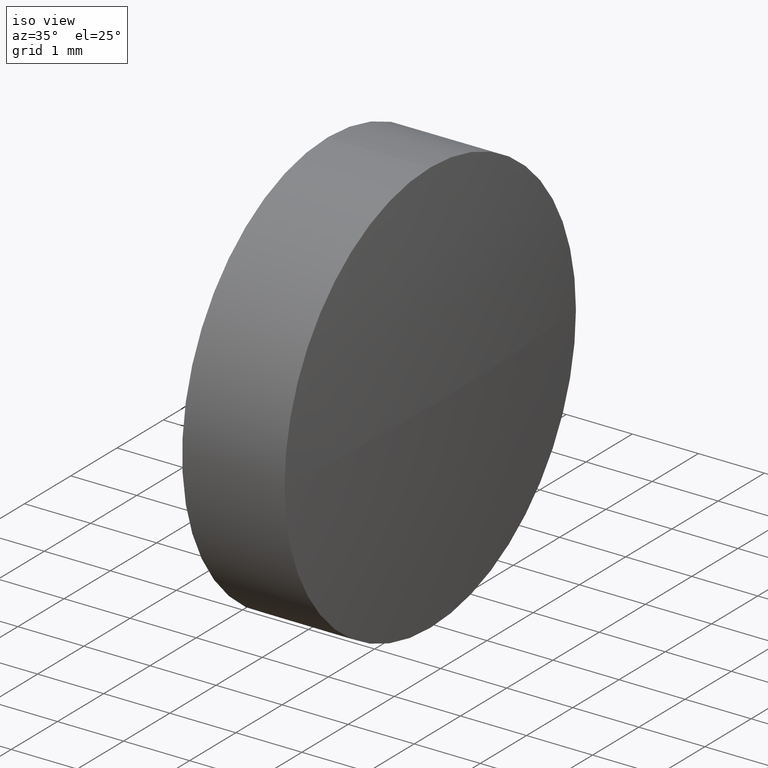
[diagram: clean part render]
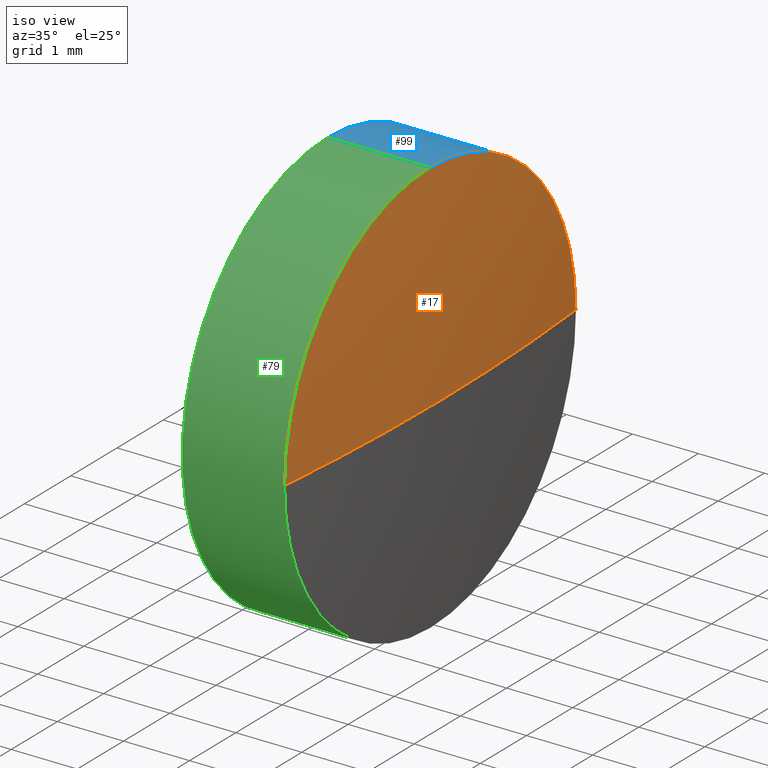
[diagram: same view with three faces highlighted in distinct colors, each labeled with its STEP entity id]
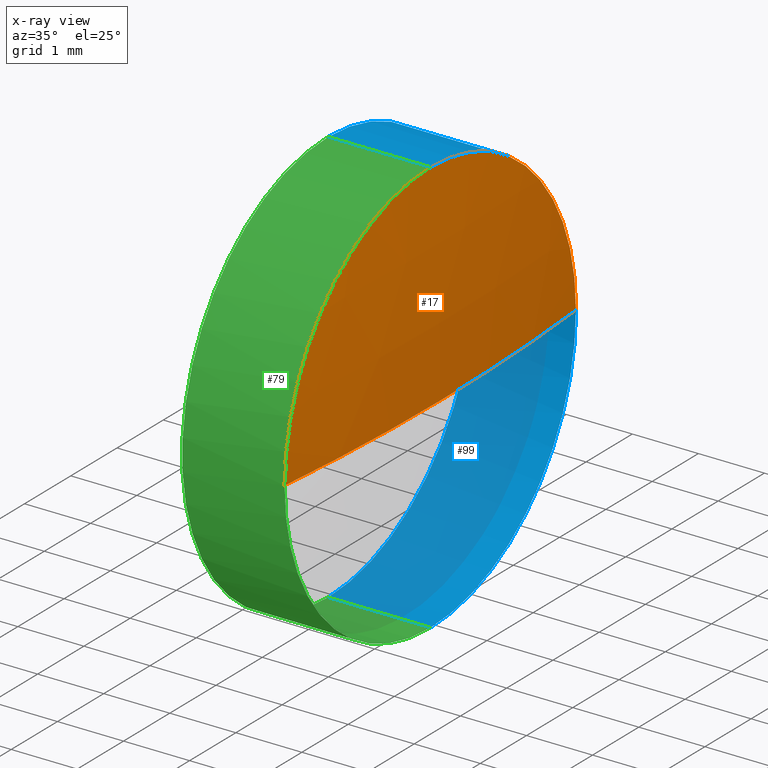
[diagram: x-ray of the same camera — body ghosted, the three highlighted faces saturated]
A machine part, iso view with three faces highlighted in distinct colors.
The next image is the same camera in x-ray (body ghosted, the three faces saturated) — at least one of them is partly hidden behind the body in this view.
Their STEP definitions:

[orange] entity #17 — the highlighted spherical surface has radius 33.15 mm.
#4 = VERTEX_POINT ( 'NONE', #42 ) ;
#9 = DIRECTION ( 'NONE',  ( -1.000000000000000000, 0.0000000000000000000, 0.0000000000000000000 ) ) ;
#13 = EDGE_LOOP ( 'NONE', ( #150, #172, #61, #182 ) ) ;
#17 = ADVANCED_FACE ( 'NONE', ( #152 ), #69, .T. ) ;
#18 = CARTESIAN_POINT ( 'NONE',  ( 487.3789024889172800, 224.6626212863787900, 0.0000000000000000000 ) ) ;
#22 = CIRCLE ( 'NONE', #84, 3.150000000000013700 ) ;
#23 = DIRECTION ( 'NONE',  ( 0.0000000000000000000, 0.0000000000000000000, -1.000000000000000000 ) ) ;
#27 = DIRECTION ( 'NONE',  ( 0.0000000000000000000, -1.000000000000000000, 0.0000000000000000000 ) ) ;
#33 = DIRECTION ( 'NONE',  ( 0.0000000000000000000, -1.000000000000000000, -1.224646799147353200E-016 ) ) ;
#34 = DIRECTION ( 'NONE',  ( 0.0000000000000000000, -1.224646799147353200E-016, 1.000000000000000000 ) ) ;
#37 = EDGE_CURVE ( 'NONE', #153, #4, #117, .T. ) ;
#41 = AXIS2_PLACEMENT_3D ( 'NONE', #95, #34, #33 ) ;
#42 = CARTESIAN_POINT ( 'NONE',  ( 487.3789024889172800, 227.8126212863787400, 3.857637417314024600E-016 ) ) ;
#44 = DIRECTION ( 'NONE',  ( 0.0000000000000000000, 0.0000000000000000000, 1.000000000000000000 ) ) ;
#61 = ORIENTED_EDGE ( 'NONE', *, *, #37, .F. ) ;
#63 = AXIS2_PLACEMENT_3D ( 'NONE', #82, #145, #171 ) ;
#69 = SPHERICAL_SURFACE ( 'NONE', #168, 33.15000000000001300 ) ;
#82 = CARTESIAN_POINT ( 'NONE',  ( 487.3789024889172800, 224.6626212863787900, 0.0000000000000000000 ) ) ;
#83 = DIRECTION ( 'NONE',  ( 0.0000000000000000000, 0.0000000000000000000, 1.000000000000000000 ) ) ;
#84 = AXIS2_PLACEMENT_3D ( 'NONE', #18, #161, #44 ) ;
#87 = CARTESIAN_POINT ( 'NONE',  ( 487.3789024889172800, 221.5126212863788700, 0.0000000000000000000 ) ) ;
#95 = CARTESIAN_POINT ( 'NONE',  ( 454.3789024889172800, 224.6626212863788800, 0.0000000000000000000 ) ) ;
#97 = CARTESIAN_POINT ( 'NONE',  ( 487.3789024889172800, 224.6626212863787900, 3.150000000000013700 ) ) ;
#98 = CIRCLE ( 'NONE', #41, 33.15000000000001300 ) ;
#103 = CARTESIAN_POINT ( 'NONE',  ( 454.3789024889172800, 224.6626212863788800, 0.0000000000000000000 ) ) ;
#108 = VERTEX_POINT ( 'NONE', #185 ) ;
#117 = CIRCLE ( 'NONE', #63, 3.150000000000013700 ) ;
#122 = EDGE_CURVE ( 'NONE', #136, #153, #22, .T. ) ;
#125 = CIRCLE ( 'NONE', #134, 33.15000000000001300 ) ;
#126 = CARTESIAN_POINT ( 'NONE',  ( 454.3789024889172800, 224.6626212863788800, 0.0000000000000000000 ) ) ;
#134 = AXIS2_PLACEMENT_3D ( 'NONE', #126, #23, #9 ) ;
#136 = VERTEX_POINT ( 'NONE', #87 ) ;
#144 = EDGE_CURVE ( 'NONE', #108, #4, #98, .T. ) ;
#145 = DIRECTION ( 'NONE',  ( -1.000000000000000000, -0.0000000000000000000, -0.0000000000000000000 ) ) ;
#150 = ORIENTED_EDGE ( 'NONE', *, *, #180, .F. ) ;
#152 = FACE_OUTER_BOUND ( 'NONE', #13, .T. ) ;
#153 = VERTEX_POINT ( 'NONE', #97 ) ;
#161 = DIRECTION ( 'NONE',  ( -1.000000000000000000, -0.0000000000000000000, -0.0000000000000000000 ) ) ;
#168 = AXIS2_PLACEMENT_3D ( 'NONE', #103, #83, #27 ) ;
#171 = DIRECTION ( 'NONE',  ( 0.0000000000000000000, 0.0000000000000000000, 1.000000000000000000 ) ) ;
#172 = ORIENTED_EDGE ( 'NONE', *, *, #144, .T. ) ;
#180 = EDGE_CURVE ( 'NONE', #108, #136, #125, .T. ) ;
#182 = ORIENTED_EDGE ( 'NONE', *, *, #122, .F. ) ;
#185 = CARTESIAN_POINT ( 'NONE',  ( 487.5289024889172500, 224.6626212863788800, 0.0000000000000000000 ) ) ;

[blue] entity #99 — the highlighted cylindrical surface (partial cylindrical patch) has radius 3.15 mm, axis along (-1, -0, -0).
#1 = CARTESIAN_POINT ( 'NONE',  ( 485.8289024889173200, 224.6626212863787900, -3.150000000000013700 ) ) ;
#3 = AXIS2_PLACEMENT_3D ( 'NONE', #165, #56, #93 ) ;
#4 = VERTEX_POINT ( 'NONE', #42 ) ;
#11 = CIRCLE ( 'NONE', #3, 3.150000000000013700 ) ;
#14 = DIRECTION ( 'NONE',  ( -1.000000000000000000, -0.0000000000000000000, -0.0000000000000000000 ) ) ;
#20 = AXIS2_PLACEMENT_3D ( 'NONE', #158, #14, #88 ) ;
#30 = LINE ( 'NONE', #147, #46 ) ;
#32 = VERTEX_POINT ( 'NONE', #65 ) ;
#37 = EDGE_CURVE ( 'NONE', #153, #4, #117, .T. ) ;
#39 = DIRECTION ( 'NONE',  ( -1.000000000000000000, -0.0000000000000000000, -0.0000000000000000000 ) ) ;
#40 = ORIENTED_EDGE ( 'NONE', *, *, #47, .T. ) ;
#42 = CARTESIAN_POINT ( 'NONE',  ( 487.3789024889172800, 227.8126212863787400, 3.857637417314024600E-016 ) ) ;
#43 = ORIENTED_EDGE ( 'NONE', *, *, #92, .F. ) ;
#46 = VECTOR ( 'NONE', #133, 1000.000000000000000 ) ;
#47 = EDGE_CURVE ( 'NONE', #91, #123, #30, .T. ) ;
#55 = CIRCLE ( 'NONE', #174, 3.150000000000013700 ) ;
#56 = DIRECTION ( 'NONE',  ( -1.000000000000000000, -0.0000000000000000000, -0.0000000000000000000 ) ) ;
#58 = CYLINDRICAL_SURFACE ( 'NONE', #20, 3.150000000000013700 ) ;
#63 = AXIS2_PLACEMENT_3D ( 'NONE', #82, #145, #171 ) ;
#65 = CARTESIAN_POINT ( 'NONE',  ( 485.8289024889173200, 224.6626212863787900, 3.150000000000013700 ) ) ;
#67 = DIRECTION ( 'NONE',  ( -1.000000000000000000, -0.0000000000000000000, -0.0000000000000000000 ) ) ;
#70 = CARTESIAN_POINT ( 'NONE',  ( 484.9672743193327700, 224.6626212863787900, 3.150000000000013700 ) ) ;
#71 = VECTOR ( 'NONE', #67, 1000.000000000000000 ) ;
#82 = CARTESIAN_POINT ( 'NONE',  ( 487.3789024889172800, 224.6626212863787900, 0.0000000000000000000 ) ) ;
#88 = DIRECTION ( 'NONE',  ( 0.0000000000000000000, 0.0000000000000000000, 1.000000000000000000 ) ) ;
#91 = VERTEX_POINT ( 'NONE', #148 ) ;
#92 = EDGE_CURVE ( 'NONE', #153, #32, #120, .T. ) ;
#93 = DIRECTION ( 'NONE',  ( 0.0000000000000000000, 0.0000000000000000000, 1.000000000000000000 ) ) ;
#97 = CARTESIAN_POINT ( 'NONE',  ( 487.3789024889172800, 224.6626212863787900, 3.150000000000013700 ) ) ;
#99 = ADVANCED_FACE ( 'NONE', ( #156 ), #58, .T. ) ;
#106 = EDGE_CURVE ( 'NONE', #32, #123, #55, .T. ) ;
#114 = EDGE_LOOP ( 'NONE', ( #167, #40, #186, #43, #179 ) ) ;
#117 = CIRCLE ( 'NONE', #63, 3.150000000000013700 ) ;
#119 = CARTESIAN_POINT ( 'NONE',  ( 485.8289024889173200, 224.6626212863787900, 0.0000000000000000000 ) ) ;
#120 = LINE ( 'NONE', #70, #71 ) ;
#123 = VERTEX_POINT ( 'NONE', #1 ) ;
#133 = DIRECTION ( 'NONE',  ( -1.000000000000000000, -0.0000000000000000000, -0.0000000000000000000 ) ) ;
#138 = EDGE_CURVE ( 'NONE', #4, #91, #11, .T. ) ;
#145 = DIRECTION ( 'NONE',  ( -1.000000000000000000, -0.0000000000000000000, -0.0000000000000000000 ) ) ;
#147 = CARTESIAN_POINT ( 'NONE',  ( 484.9672743193327700, 224.6626212863787900, -3.150000000000013700 ) ) ;
#148 = CARTESIAN_POINT ( 'NONE',  ( 487.3789024889172800, 224.6626212863787900, -3.150000000000013700 ) ) ;
#149 = DIRECTION ( 'NONE',  ( 0.0000000000000000000, 0.0000000000000000000, 1.000000000000000000 ) ) ;
#153 = VERTEX_POINT ( 'NONE', #97 ) ;
#156 = FACE_OUTER_BOUND ( 'NONE', #114, .T. ) ;
#158 = CARTESIAN_POINT ( 'NONE',  ( 484.9672743193327700, 224.6626212863787900, 0.0000000000000000000 ) ) ;
#165 = CARTESIAN_POINT ( 'NONE',  ( 487.3789024889172800, 224.6626212863787900, 0.0000000000000000000 ) ) ;
#167 = ORIENTED_EDGE ( 'NONE', *, *, #138, .T. ) ;
#171 = DIRECTION ( 'NONE',  ( 0.0000000000000000000, 0.0000000000000000000, 1.000000000000000000 ) ) ;
#174 = AXIS2_PLACEMENT_3D ( 'NONE', #119, #39, #149 ) ;
#179 = ORIENTED_EDGE ( 'NONE', *, *, #37, .T. ) ;
#186 = ORIENTED_EDGE ( 'NONE', *, *, #106, .F. ) ;

[green] entity #79 — the highlighted cylindrical surface (partial cylindrical patch) has radius 3.15 mm, axis along (-1, -0, -0).
#1 = CARTESIAN_POINT ( 'NONE',  ( 485.8289024889173200, 224.6626212863787900, -3.150000000000013700 ) ) ;
#2 = CIRCLE ( 'NONE', #68, 3.150000000000013700 ) ;
#5 = CIRCLE ( 'NONE', #7, 3.150000000000013700 ) ;
#6 = ORIENTED_EDGE ( 'NONE', *, *, #47, .F. ) ;
#7 = AXIS2_PLACEMENT_3D ( 'NONE', #59, #142, #110 ) ;
#18 = CARTESIAN_POINT ( 'NONE',  ( 487.3789024889172800, 224.6626212863787900, 0.0000000000000000000 ) ) ;
#21 = ORIENTED_EDGE ( 'NONE', *, *, #92, .T. ) ;
#22 = CIRCLE ( 'NONE', #84, 3.150000000000013700 ) ;
#25 = EDGE_LOOP ( 'NONE', ( #6, #121, #164, #21, #111 ) ) ;
#30 = LINE ( 'NONE', #147, #46 ) ;
#32 = VERTEX_POINT ( 'NONE', #65 ) ;
#44 = DIRECTION ( 'NONE',  ( 0.0000000000000000000, 0.0000000000000000000, 1.000000000000000000 ) ) ;
#46 = VECTOR ( 'NONE', #133, 1000.000000000000000 ) ;
#47 = EDGE_CURVE ( 'NONE', #91, #123, #30, .T. ) ;
#59 = CARTESIAN_POINT ( 'NONE',  ( 485.8289024889173200, 224.6626212863787900, 0.0000000000000000000 ) ) ;
#60 = CARTESIAN_POINT ( 'NONE',  ( 487.3789024889172800, 224.6626212863787900, 0.0000000000000000000 ) ) ;
#62 = DIRECTION ( 'NONE',  ( 0.0000000000000000000, 0.0000000000000000000, 1.000000000000000000 ) ) ;
#65 = CARTESIAN_POINT ( 'NONE',  ( 485.8289024889173200, 224.6626212863787900, 3.150000000000013700 ) ) ;
#67 = DIRECTION ( 'NONE',  ( -1.000000000000000000, -0.0000000000000000000, -0.0000000000000000000 ) ) ;
#68 = AXIS2_PLACEMENT_3D ( 'NONE', #60, #143, #62 ) ;
#70 = CARTESIAN_POINT ( 'NONE',  ( 484.9672743193327700, 224.6626212863787900, 3.150000000000013700 ) ) ;
#71 = VECTOR ( 'NONE', #67, 1000.000000000000000 ) ;
#79 = ADVANCED_FACE ( 'NONE', ( #160 ), #105, .T. ) ;
#84 = AXIS2_PLACEMENT_3D ( 'NONE', #18, #161, #44 ) ;
#85 = DIRECTION ( 'NONE',  ( -1.000000000000000000, -0.0000000000000000000, -0.0000000000000000000 ) ) ;
#87 = CARTESIAN_POINT ( 'NONE',  ( 487.3789024889172800, 221.5126212863788700, 0.0000000000000000000 ) ) ;
#91 = VERTEX_POINT ( 'NONE', #148 ) ;
#92 = EDGE_CURVE ( 'NONE', #153, #32, #120, .T. ) ;
#97 = CARTESIAN_POINT ( 'NONE',  ( 487.3789024889172800, 224.6626212863787900, 3.150000000000013700 ) ) ;
#102 = CARTESIAN_POINT ( 'NONE',  ( 484.9672743193327700, 224.6626212863787900, 0.0000000000000000000 ) ) ;
#105 = CYLINDRICAL_SURFACE ( 'NONE', #139, 3.150000000000013700 ) ;
#110 = DIRECTION ( 'NONE',  ( 0.0000000000000000000, 0.0000000000000000000, 1.000000000000000000 ) ) ;
#111 = ORIENTED_EDGE ( 'NONE', *, *, #151, .F. ) ;
#120 = LINE ( 'NONE', #70, #71 ) ;
#121 = ORIENTED_EDGE ( 'NONE', *, *, #155, .T. ) ;
#122 = EDGE_CURVE ( 'NONE', #136, #153, #22, .T. ) ;
#123 = VERTEX_POINT ( 'NONE', #1 ) ;
#133 = DIRECTION ( 'NONE',  ( -1.000000000000000000, -0.0000000000000000000, -0.0000000000000000000 ) ) ;
#136 = VERTEX_POINT ( 'NONE', #87 ) ;
#139 = AXIS2_PLACEMENT_3D ( 'NONE', #102, #85, #159 ) ;
#142 = DIRECTION ( 'NONE',  ( -1.000000000000000000, -0.0000000000000000000, -0.0000000000000000000 ) ) ;
#143 = DIRECTION ( 'NONE',  ( -1.000000000000000000, -0.0000000000000000000, -0.0000000000000000000 ) ) ;
#147 = CARTESIAN_POINT ( 'NONE',  ( 484.9672743193327700, 224.6626212863787900, -3.150000000000013700 ) ) ;
#148 = CARTESIAN_POINT ( 'NONE',  ( 487.3789024889172800, 224.6626212863787900, -3.150000000000013700 ) ) ;
#151 = EDGE_CURVE ( 'NONE', #123, #32, #5, .T. ) ;
#153 = VERTEX_POINT ( 'NONE', #97 ) ;
#155 = EDGE_CURVE ( 'NONE', #91, #136, #2, .T. ) ;
#159 = DIRECTION ( 'NONE',  ( 0.0000000000000000000, 0.0000000000000000000, 1.000000000000000000 ) ) ;
#160 = FACE_OUTER_BOUND ( 'NONE', #25, .T. ) ;
#161 = DIRECTION ( 'NONE',  ( -1.000000000000000000, -0.0000000000000000000, -0.0000000000000000000 ) ) ;
#164 = ORIENTED_EDGE ( 'NONE', *, *, #122, .T. ) ;